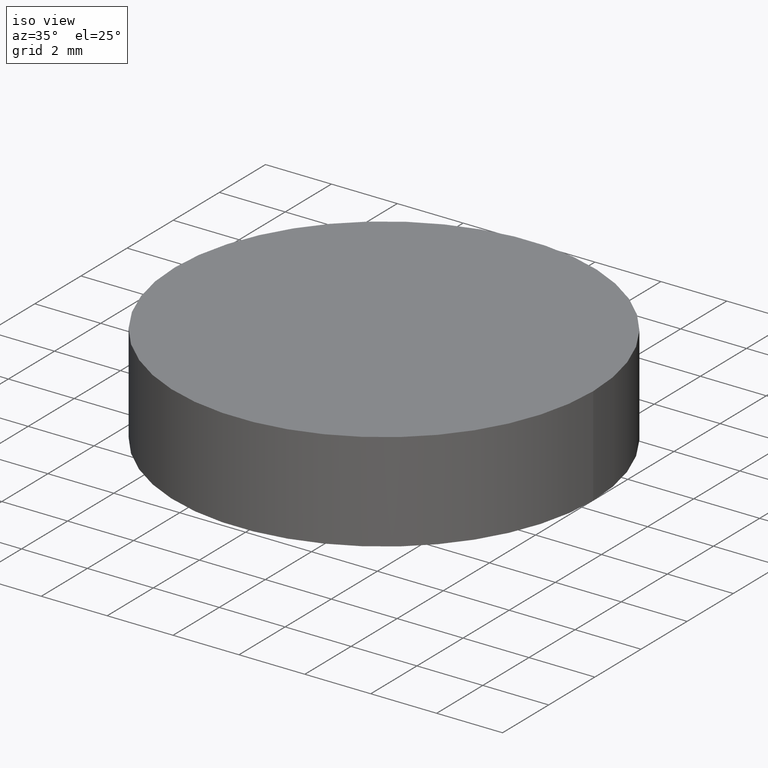
[diagram: clean part render]
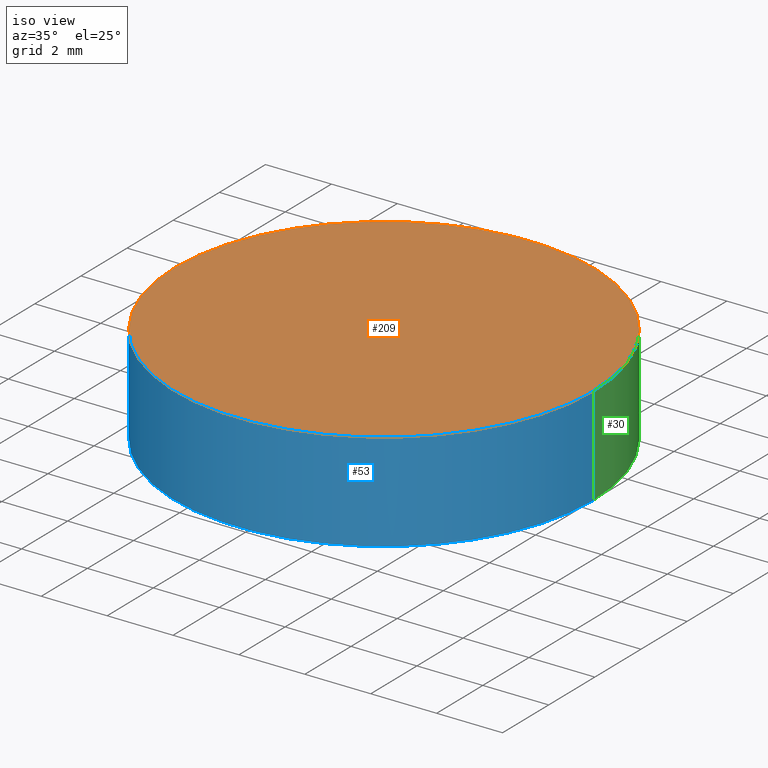
[diagram: same view with three faces highlighted in distinct colors, each labeled with its STEP entity id]
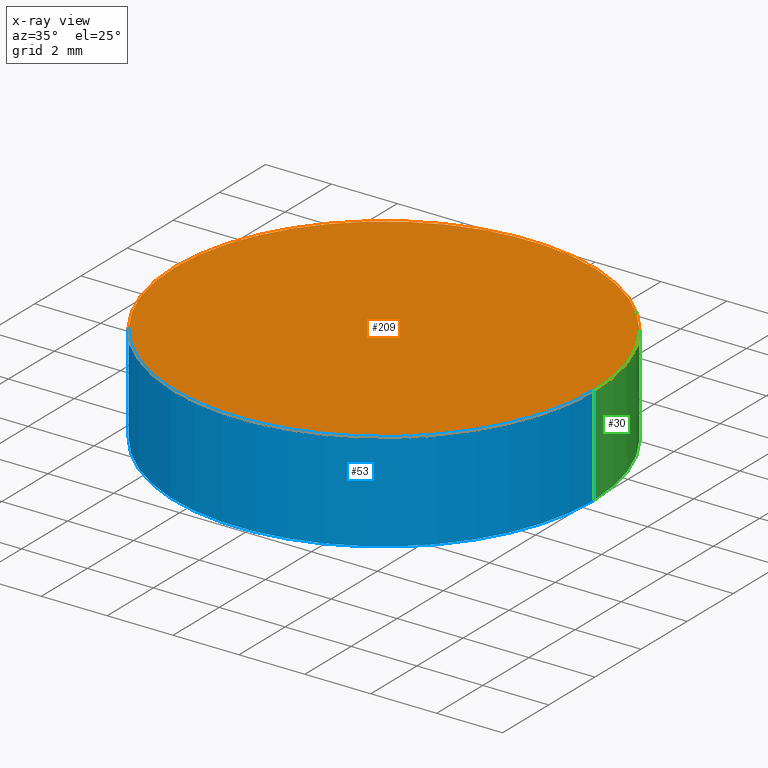
[diagram: x-ray of the same camera — body ghosted, the three highlighted faces saturated]
A machine part, iso view with three faces highlighted in distinct colors.
The next image is the same camera in x-ray (body ghosted, the three faces saturated) — at least one of them is partly hidden behind the body in this view.
Their STEP definitions:

[orange] entity #209 — the highlighted planar face has unit normal (0, 0, 1).
#2 = AXIS2_PLACEMENT_3D ( 'NONE', #109, #226, #32 ) ;
#8 = CIRCLE ( 'NONE', #135, 6.349999999999999600 ) ;
#20 = DIRECTION ( 'NONE',  ( 1.000000000000000000, 0.0000000000000000000, -0.0000000000000000000 ) ) ;
#29 = VERTEX_POINT ( 'NONE', #206 ) ;
#32 = DIRECTION ( 'NONE',  ( 1.000000000000000000, 0.0000000000000000000, 0.0000000000000000000 ) ) ;
#72 = CIRCLE ( 'NONE', #2, 6.349999999999999600 ) ;
#74 = ORIENTED_EDGE ( 'NONE', *, *, #179, .T. ) ;
#79 = ORIENTED_EDGE ( 'NONE', *, *, #139, .T. ) ;
#80 = PLANE ( 'NONE',  #142 ) ;
#87 = CARTESIAN_POINT ( 'NONE',  ( 0.0000000000000000000, 0.0000000000000000000, 3.000000000000000000 ) ) ;
#88 = FACE_OUTER_BOUND ( 'NONE', #146, .T. ) ;
#104 = DIRECTION ( 'NONE',  ( 0.0000000000000000000, 0.0000000000000000000, 1.000000000000000000 ) ) ;
#109 = CARTESIAN_POINT ( 'NONE',  ( 0.0000000000000000000, 0.0000000000000000000, 3.000000000000000000 ) ) ;
#135 = AXIS2_PLACEMENT_3D ( 'NONE', #87, #104, #236 ) ;
#137 = CARTESIAN_POINT ( 'NONE',  ( 0.0000000000000000000, 0.0000000000000000000, 3.000000000000000000 ) ) ;
#139 = EDGE_CURVE ( 'NONE', #184, #29, #72, .T. ) ;
#142 = AXIS2_PLACEMENT_3D ( 'NONE', #137, #253, #20 ) ;
#146 = EDGE_LOOP ( 'NONE', ( #79, #74 ) ) ;
#179 = EDGE_CURVE ( 'NONE', #29, #184, #8, .T. ) ;
#184 = VERTEX_POINT ( 'NONE', #223 ) ;
#206 = CARTESIAN_POINT ( 'NONE',  ( 6.349999999999999600, 7.776507174585692200E-016, 3.000000000000000000 ) ) ;
#209 = ADVANCED_FACE ( 'NONE', ( #88 ), #80, .T. ) ;
#223 = CARTESIAN_POINT ( 'NONE',  ( -6.349999999999999600, 0.0000000000000000000, 3.000000000000000000 ) ) ;
#226 = DIRECTION ( 'NONE',  ( 0.0000000000000000000, 0.0000000000000000000, 1.000000000000000000 ) ) ;
#236 = DIRECTION ( 'NONE',  ( 1.000000000000000000, 0.0000000000000000000, 0.0000000000000000000 ) ) ;
#253 = DIRECTION ( 'NONE',  ( 0.0000000000000000000, 0.0000000000000000000, 1.000000000000000000 ) ) ;

[blue] entity #53 — the highlighted cylindrical surface (partial cylindrical patch) has radius 6.35 mm, axis along (-0, -0, -1).
#2 = AXIS2_PLACEMENT_3D ( 'NONE', #109, #226, #32 ) ;
#25 = VERTEX_POINT ( 'NONE', #247 ) ;
#26 = AXIS2_PLACEMENT_3D ( 'NONE', #71, #92, #228 ) ;
#29 = VERTEX_POINT ( 'NONE', #206 ) ;
#32 = DIRECTION ( 'NONE',  ( 1.000000000000000000, 0.0000000000000000000, 0.0000000000000000000 ) ) ;
#35 = VERTEX_POINT ( 'NONE', #165 ) ;
#36 = LINE ( 'NONE', #178, #204 ) ;
#51 = DIRECTION ( 'NONE',  ( -1.000000000000000000, 0.0000000000000000000, 0.0000000000000000000 ) ) ;
#53 = ADVANCED_FACE ( 'NONE', ( #116 ), #112, .T. ) ;
#57 = ORIENTED_EDGE ( 'NONE', *, *, #149, .T. ) ;
#58 = CARTESIAN_POINT ( 'NONE',  ( 6.349999999999999600, 7.776507174585692200E-016, 3.000000000000000000 ) ) ;
#64 = DIRECTION ( 'NONE',  ( -0.0000000000000000000, -0.0000000000000000000, -1.000000000000000000 ) ) ;
#71 = CARTESIAN_POINT ( 'NONE',  ( 0.0000000000000000000, 0.0000000000000000000, 0.0000000000000000000 ) ) ;
#72 = CIRCLE ( 'NONE', #2, 6.349999999999999600 ) ;
#92 = DIRECTION ( 'NONE',  ( 0.0000000000000000000, 0.0000000000000000000, 1.000000000000000000 ) ) ;
#108 = AXIS2_PLACEMENT_3D ( 'NONE', #190, #130, #51 ) ;
#109 = CARTESIAN_POINT ( 'NONE',  ( 0.0000000000000000000, 0.0000000000000000000, 3.000000000000000000 ) ) ;
#112 = CYLINDRICAL_SURFACE ( 'NONE', #108, 6.349999999999999600 ) ;
#116 = FACE_OUTER_BOUND ( 'NONE', #143, .T. ) ;
#126 = VECTOR ( 'NONE', #214, 1000.000000000000000 ) ;
#130 = DIRECTION ( 'NONE',  ( -0.0000000000000000000, -0.0000000000000000000, -1.000000000000000000 ) ) ;
#139 = EDGE_CURVE ( 'NONE', #184, #29, #72, .T. ) ;
#143 = EDGE_LOOP ( 'NONE', ( #159, #211, #235, #57 ) ) ;
#149 = EDGE_CURVE ( 'NONE', #35, #25, #215, .T. ) ;
#158 = EDGE_CURVE ( 'NONE', #29, #25, #161, .T. ) ;
#159 = ORIENTED_EDGE ( 'NONE', *, *, #158, .F. ) ;
#161 = LINE ( 'NONE', #58, #126 ) ;
#165 = CARTESIAN_POINT ( 'NONE',  ( -6.349999999999999600, 0.0000000000000000000, 0.0000000000000000000 ) ) ;
#178 = CARTESIAN_POINT ( 'NONE',  ( -6.349999999999999600, 0.0000000000000000000, 3.000000000000000000 ) ) ;
#184 = VERTEX_POINT ( 'NONE', #223 ) ;
#190 = CARTESIAN_POINT ( 'NONE',  ( 0.0000000000000000000, 0.0000000000000000000, 3.000000000000000000 ) ) ;
#204 = VECTOR ( 'NONE', #64, 1000.000000000000000 ) ;
#206 = CARTESIAN_POINT ( 'NONE',  ( 6.349999999999999600, 7.776507174585692200E-016, 3.000000000000000000 ) ) ;
#211 = ORIENTED_EDGE ( 'NONE', *, *, #139, .F. ) ;
#214 = DIRECTION ( 'NONE',  ( -0.0000000000000000000, -0.0000000000000000000, -1.000000000000000000 ) ) ;
#215 = CIRCLE ( 'NONE', #26, 6.349999999999999600 ) ;
#220 = EDGE_CURVE ( 'NONE', #184, #35, #36, .T. ) ;
#223 = CARTESIAN_POINT ( 'NONE',  ( -6.349999999999999600, 0.0000000000000000000, 3.000000000000000000 ) ) ;
#226 = DIRECTION ( 'NONE',  ( 0.0000000000000000000, 0.0000000000000000000, 1.000000000000000000 ) ) ;
#228 = DIRECTION ( 'NONE',  ( 1.000000000000000000, 0.0000000000000000000, 0.0000000000000000000 ) ) ;
#235 = ORIENTED_EDGE ( 'NONE', *, *, #220, .T. ) ;
#247 = CARTESIAN_POINT ( 'NONE',  ( 6.349999999999999600, 7.776507174585692200E-016, 0.0000000000000000000 ) ) ;

[green] entity #30 — the highlighted cylindrical surface (partial cylindrical patch) has radius 6.35 mm, axis along (-0, -0, -1).
#8 = CIRCLE ( 'NONE', #135, 6.349999999999999600 ) ;
#15 = ORIENTED_EDGE ( 'NONE', *, *, #158, .T. ) ;
#22 = FACE_OUTER_BOUND ( 'NONE', #47, .T. ) ;
#25 = VERTEX_POINT ( 'NONE', #247 ) ;
#29 = VERTEX_POINT ( 'NONE', #206 ) ;
#30 = ADVANCED_FACE ( 'NONE', ( #22 ), #167, .T. ) ;
#35 = VERTEX_POINT ( 'NONE', #165 ) ;
#36 = LINE ( 'NONE', #178, #204 ) ;
#47 = EDGE_LOOP ( 'NONE', ( #230, #15, #152, #244 ) ) ;
#52 = DIRECTION ( 'NONE',  ( -1.000000000000000000, 0.0000000000000000000, 0.0000000000000000000 ) ) ;
#58 = CARTESIAN_POINT ( 'NONE',  ( 6.349999999999999600, 7.776507174585692200E-016, 3.000000000000000000 ) ) ;
#64 = DIRECTION ( 'NONE',  ( -0.0000000000000000000, -0.0000000000000000000, -1.000000000000000000 ) ) ;
#68 = CIRCLE ( 'NONE', #232, 6.349999999999999600 ) ;
#86 = EDGE_CURVE ( 'NONE', #25, #35, #68, .T. ) ;
#87 = CARTESIAN_POINT ( 'NONE',  ( 0.0000000000000000000, 0.0000000000000000000, 3.000000000000000000 ) ) ;
#89 = DIRECTION ( 'NONE',  ( 1.000000000000000000, 0.0000000000000000000, 0.0000000000000000000 ) ) ;
#90 = DIRECTION ( 'NONE',  ( 0.0000000000000000000, 0.0000000000000000000, 1.000000000000000000 ) ) ;
#104 = DIRECTION ( 'NONE',  ( 0.0000000000000000000, 0.0000000000000000000, 1.000000000000000000 ) ) ;
#105 = DIRECTION ( 'NONE',  ( -0.0000000000000000000, -0.0000000000000000000, -1.000000000000000000 ) ) ;
#126 = VECTOR ( 'NONE', #214, 1000.000000000000000 ) ;
#135 = AXIS2_PLACEMENT_3D ( 'NONE', #87, #104, #236 ) ;
#152 = ORIENTED_EDGE ( 'NONE', *, *, #86, .T. ) ;
#158 = EDGE_CURVE ( 'NONE', #29, #25, #161, .T. ) ;
#161 = LINE ( 'NONE', #58, #126 ) ;
#165 = CARTESIAN_POINT ( 'NONE',  ( -6.349999999999999600, 0.0000000000000000000, 0.0000000000000000000 ) ) ;
#166 = CARTESIAN_POINT ( 'NONE',  ( 0.0000000000000000000, 0.0000000000000000000, 3.000000000000000000 ) ) ;
#167 = CYLINDRICAL_SURFACE ( 'NONE', #246, 6.349999999999999600 ) ;
#178 = CARTESIAN_POINT ( 'NONE',  ( -6.349999999999999600, 0.0000000000000000000, 3.000000000000000000 ) ) ;
#179 = EDGE_CURVE ( 'NONE', #29, #184, #8, .T. ) ;
#184 = VERTEX_POINT ( 'NONE', #223 ) ;
#186 = CARTESIAN_POINT ( 'NONE',  ( 0.0000000000000000000, 0.0000000000000000000, 0.0000000000000000000 ) ) ;
#204 = VECTOR ( 'NONE', #64, 1000.000000000000000 ) ;
#206 = CARTESIAN_POINT ( 'NONE',  ( 6.349999999999999600, 7.776507174585692200E-016, 3.000000000000000000 ) ) ;
#214 = DIRECTION ( 'NONE',  ( -0.0000000000000000000, -0.0000000000000000000, -1.000000000000000000 ) ) ;
#220 = EDGE_CURVE ( 'NONE', #184, #35, #36, .T. ) ;
#223 = CARTESIAN_POINT ( 'NONE',  ( -6.349999999999999600, 0.0000000000000000000, 3.000000000000000000 ) ) ;
#230 = ORIENTED_EDGE ( 'NONE', *, *, #179, .F. ) ;
#232 = AXIS2_PLACEMENT_3D ( 'NONE', #186, #90, #89 ) ;
#236 = DIRECTION ( 'NONE',  ( 1.000000000000000000, 0.0000000000000000000, 0.0000000000000000000 ) ) ;
#244 = ORIENTED_EDGE ( 'NONE', *, *, #220, .F. ) ;
#246 = AXIS2_PLACEMENT_3D ( 'NONE', #166, #105, #52 ) ;
#247 = CARTESIAN_POINT ( 'NONE',  ( 6.349999999999999600, 7.776507174585692200E-016, 0.0000000000000000000 ) ) ;